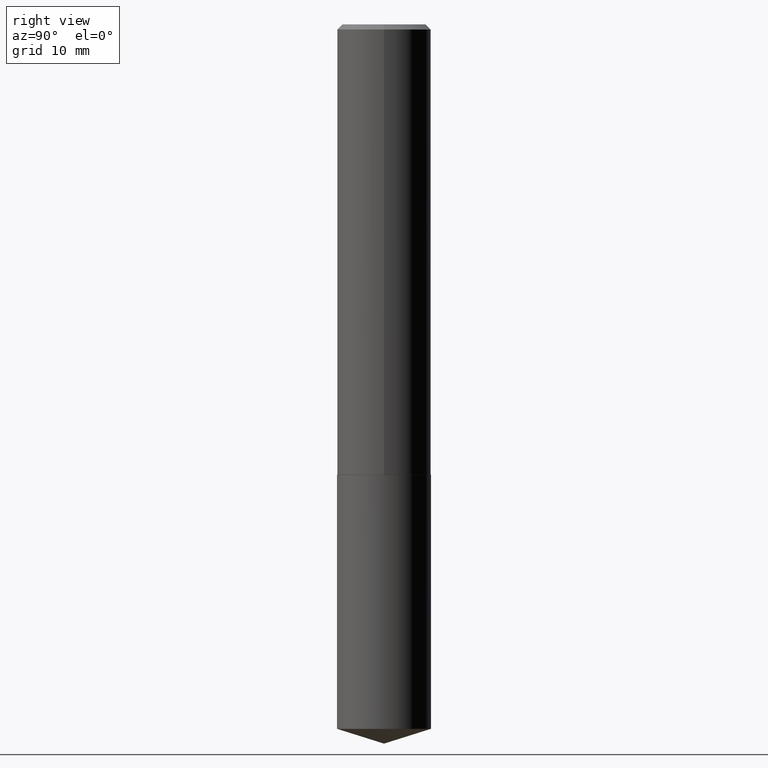
[diagram: clean part render]
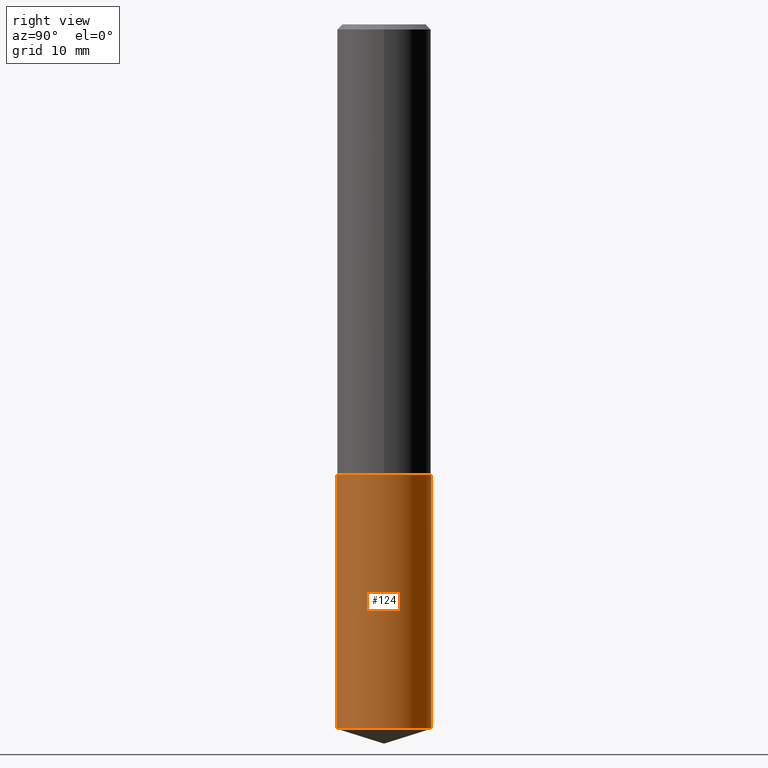
[diagram: same view with one face highlighted and labeled with its STEP entity id]
A machine part, right view. The second image highlights one B-rep face of the part: STEP entity #124.
In plain terms, the highlighted cylindrical surface (partial cylindrical patch) has radius 7.2504 mm, axis along (-0, 0, 1).
Its self-contained STEP definition (entity closure, byte-faithful):
#16 = DIRECTION ( 'NONE',  ( -2.445654948928403748E-29, 3.491214771840200006E-15, 1.000000000000000000 ) ) ;
#61 = EDGE_CURVE ( 'NONE', #180, #328, #210, .T. ) ;
#97 = VERTEX_POINT ( 'NONE', #336 ) ;
#105 = CARTESIAN_POINT ( 'NONE',  ( 6.691536294364390280E-29, -9.553740387476499873E-15, -2.736299999999999955 ) ) ;
#113 = ORIENTED_EDGE ( 'NONE', *, *, #61, .T. ) ;
#124 = ADVANCED_FACE ( 'NONE', ( #162 ), #379, .T. ) ;
#129 = CIRCLE ( 'NONE', #231, 0.2854499999999999815 ) ;
#130 = VECTOR ( 'NONE', #208, 39.37007874015748143 ) ;
#138 = AXIS2_PLACEMENT_3D ( 'NONE', #228, #375, #291 ) ;
#161 = EDGE_CURVE ( 'NONE', #97, #328, #129, .T. ) ;
#162 = FACE_OUTER_BOUND ( 'NONE', #211, .T. ) ;
#176 = ORIENTED_EDGE ( 'NONE', *, *, #362, .T. ) ;
#180 = VERTEX_POINT ( 'NONE', #224 ) ;
#203 = LINE ( 'NONE', #234, #130 ) ;
#208 = DIRECTION ( 'NONE',  ( -2.445654948928403468E-29, 3.491214771840200006E-15, 1.000000000000000000 ) ) ;
#210 = LINE ( 'NONE', #374, #329 ) ;
#211 = EDGE_LOOP ( 'NONE', ( #176, #113, #387, #305 ) ) ;
#221 = DIRECTION ( 'NONE',  ( -2.445654948928403748E-29, 3.491214771840200006E-15, 1.000000000000000000 ) ) ;
#224 = CARTESIAN_POINT ( 'NONE',  ( 2.028244239227311162E-15, 0.2854499999999851600, -4.280097960714495997 ) ) ;
#228 = CARTESIAN_POINT ( 'NONE',  ( 6.691536294364390280E-29, -9.553740387476499873E-15, -2.736299999999999955 ) ) ;
#229 = CARTESIAN_POINT ( 'NONE',  ( 2.028244239227311162E-15, 0.2854499999999904891, -2.736300000000001287 ) ) ;
#231 = AXIS2_PLACEMENT_3D ( 'NONE', #105, #221, #378 ) ;
#234 = CARTESIAN_POINT ( 'NONE',  ( -1.993286696345477508E-15, -0.2854500000000095294, -2.736299999999999066 ) ) ;
#242 = DIRECTION ( 'NONE',  ( -2.445654948928403468E-29, 3.491214771840200006E-15, 1.000000000000000000 ) ) ;
#262 = VERTEX_POINT ( 'NONE', #332 ) ;
#278 = EDGE_CURVE ( 'NONE', #262, #97, #203, .T. ) ;
#291 = DIRECTION ( 'NONE',  ( -6.982962677686265922E-15, -1.000000000000000000, 3.828128209723963046E-15 ) ) ;
#305 = ORIENTED_EDGE ( 'NONE', *, *, #278, .F. ) ;
#324 = CARTESIAN_POINT ( 'NONE',  ( 1.046713341713137297E-28, -1.494347063265972236E-14, -4.280097960714495109 ) ) ;
#328 = VERTEX_POINT ( 'NONE', #229 ) ;
#329 = VECTOR ( 'NONE', #242, 39.37007874015748143 ) ;
#332 = CARTESIAN_POINT ( 'NONE',  ( -1.993286696345440432E-15, -0.2854500000000150250, -4.280097960714494221 ) ) ;
#336 = CARTESIAN_POINT ( 'NONE',  ( -1.993286696345477508E-15, -0.2854500000000095294, -2.736299999999999066 ) ) ;
#353 = AXIS2_PLACEMENT_3D ( 'NONE', #324, #16, #386 ) ;
#362 = EDGE_CURVE ( 'NONE', #262, #180, #377, .T. ) ;
#374 = CARTESIAN_POINT ( 'NONE',  ( 2.028244239227272508E-15, 0.2854499999999904336, -2.736300000000001287 ) ) ;
#375 = DIRECTION ( 'NONE',  ( -2.445654948928403748E-29, 3.491214771840200006E-15, 1.000000000000000000 ) ) ;
#377 = CIRCLE ( 'NONE', #353, 0.2854499999999999815 ) ;
#378 = DIRECTION ( 'NONE',  ( -6.982962677686265922E-15, -1.000000000000000000, 3.828128209723963046E-15 ) ) ;
#379 = CYLINDRICAL_SURFACE ( 'NONE', #138, 0.2854499999999999815 ) ;
#386 = DIRECTION ( 'NONE',  ( -6.982962677686265922E-15, -1.000000000000000000, 3.828128209723963046E-15 ) ) ;
#387 = ORIENTED_EDGE ( 'NONE', *, *, #161, .F. ) ;